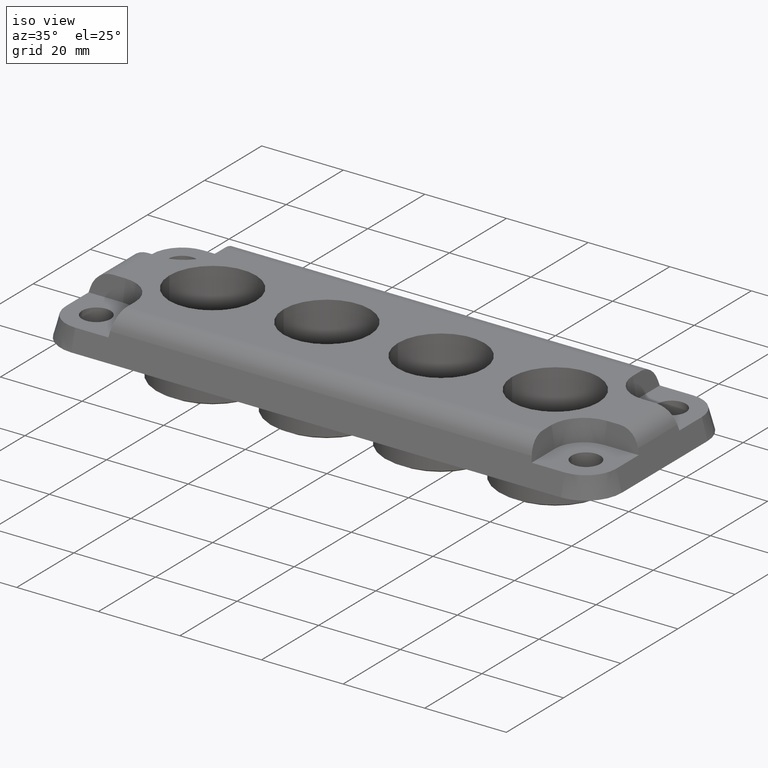
[diagram: clean part render]
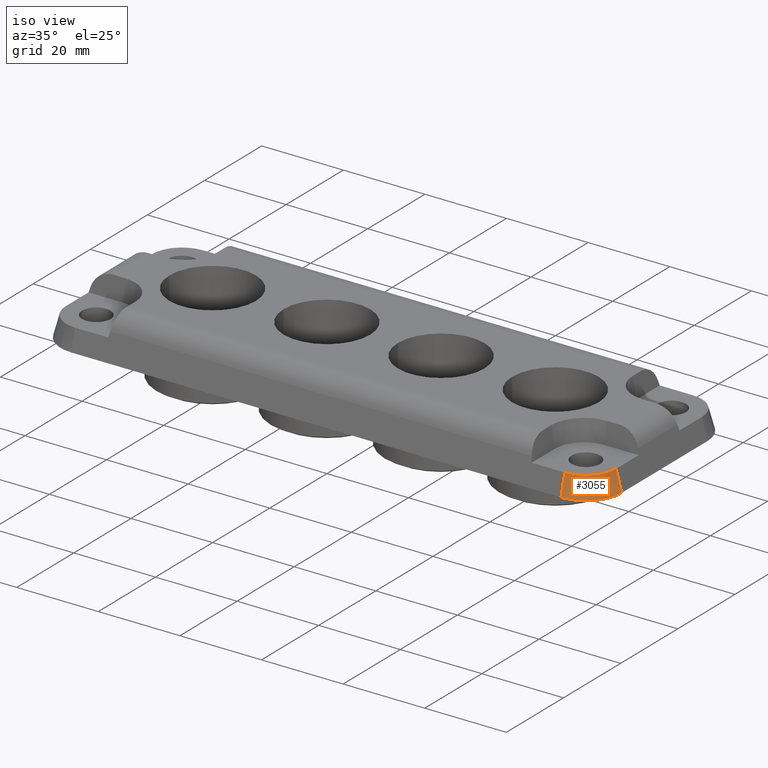
[diagram: same view with one face highlighted and labeled with its STEP entity id]
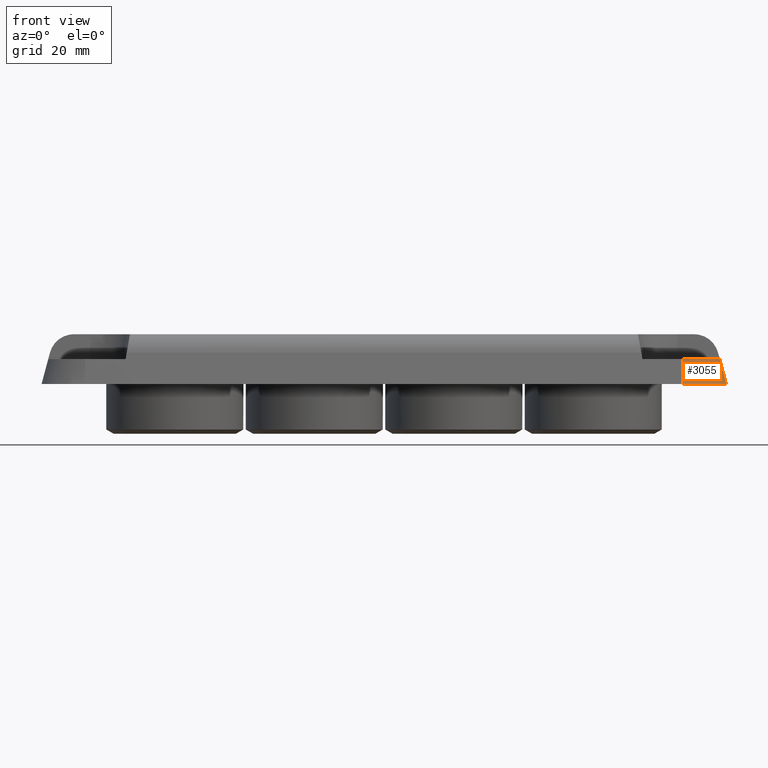
[diagram: same view with one face highlighted and labeled with its STEP entity id]
A machine part, iso view. The second image highlights one B-rep face of the part: STEP entity #3055.
A second angle (front view) of the same face is appended — the face is thin or edge-on in the first view.
In plain terms, the highlighted conical surface has half-angle 15 deg.
Its self-contained STEP definition (entity closure, byte-faithful):
#73 = CARTESIAN_POINT ( 'NONE',  ( 68.75000000000001400, -14.99999999999997700, -3.237038074713971500E-015 ) ) ;
#206 = CONICAL_SURFACE ( 'NONE', #666, 8.750000000000021300, 0.2617993877991500700 ) ;
#496 = VECTOR ( 'NONE', #3266, 1000.000000000000100 ) ;
#501 = LINE ( 'NONE', #1262, #496 ) ;
#657 = ORIENTED_EDGE ( 'NONE', *, *, #3260, .F. ) ;
#666 = AXIS2_PLACEMENT_3D ( 'NONE', #3075, #3283, #870 ) ;
#870 = DIRECTION ( 'NONE',  ( -1.000000000000000000, 0.0000000000000000000, 0.0000000000000000000 ) ) ;
#890 = CIRCLE ( 'NONE', #1618, 8.750000000000021300 ) ;
#897 = CARTESIAN_POINT ( 'NONE',  ( 68.75000000000002800, -14.99999999999997700, 0.0000000000000000000 ) ) ;
#994 = DIRECTION ( 'NONE',  ( -1.000000000000000000, 0.0000000000000000000, 0.0000000000000000000 ) ) ;
#1027 = DIRECTION ( 'NONE',  ( 0.0000000000000000000, 0.0000000000000000000, 1.000000000000000000 ) ) ;
#1262 = CARTESIAN_POINT ( 'NONE',  ( 60.00000000000001400, -23.74999999999999600, -2.602085213965216200E-015 ) ) ;
#1367 = LINE ( 'NONE', #73, #3628 ) ;
#1618 = AXIS2_PLACEMENT_3D ( 'NONE', #3849, #1027, #994 ) ;
#1675 = VERTEX_POINT ( 'NONE', #3303 ) ;
#1871 = DIRECTION ( 'NONE',  ( -0.0000000000000000000, -0.0000000000000000000, -1.000000000000000000 ) ) ;
#1894 = FACE_OUTER_BOUND ( 'NONE', #2013, .T. ) ;
#2013 = EDGE_LOOP ( 'NONE', ( #657, #3384, #3613, #3101 ) ) ;
#2148 = DIRECTION ( 'NONE',  ( -1.000000000000000000, 0.0000000000000000000, 0.0000000000000000000 ) ) ;
#2239 = DIRECTION ( 'NONE',  ( 0.2588190451025212900, -0.0000000000000000000, -0.9659258262890680900 ) ) ;
#2293 = AXIS2_PLACEMENT_3D ( 'NONE', #4056, #1871, #2148 ) ;
#2304 = VERTEX_POINT ( 'NONE', #2672 ) ;
#2487 = VERTEX_POINT ( 'NONE', #3492 ) ;
#2591 = EDGE_CURVE ( 'NONE', #1675, #3991, #890, .T. ) ;
#2626 = CIRCLE ( 'NONE', #2293, 7.410254037844399700 ) ;
#2672 = CARTESIAN_POINT ( 'NONE',  ( 60.00000000000001400, -22.41025403784437800, 5.000000000000000000 ) ) ;
#3055 = ADVANCED_FACE ( 'NONE', ( #1894 ), #206, .T. ) ;
#3075 = CARTESIAN_POINT ( 'NONE',  ( 60.00000000000001400, -14.99999999999997900, 0.0000000000000000000 ) ) ;
#3101 = ORIENTED_EDGE ( 'NONE', *, *, #2591, .T. ) ;
#3116 = EDGE_CURVE ( 'NONE', #2487, #2304, #2626, .T. ) ;
#3260 = EDGE_CURVE ( 'NONE', #2487, #3991, #1367, .T. ) ;
#3266 = DIRECTION ( 'NONE',  ( -0.0000000000000000000, -0.2588190451025213500, -0.9659258262890680900 ) ) ;
#3283 = DIRECTION ( 'NONE',  ( -0.0000000000000000000, -0.0000000000000000000, -1.000000000000000000 ) ) ;
#3303 = CARTESIAN_POINT ( 'NONE',  ( 60.00000000000001400, -23.75000000000000700, 0.0000000000000000000 ) ) ;
#3384 = ORIENTED_EDGE ( 'NONE', *, *, #3116, .T. ) ;
#3492 = CARTESIAN_POINT ( 'NONE',  ( 67.41025403784439600, -14.99999999999997700, 5.000000000000000000 ) ) ;
#3588 = EDGE_CURVE ( 'NONE', #2304, #1675, #501, .T. ) ;
#3613 = ORIENTED_EDGE ( 'NONE', *, *, #3588, .T. ) ;
#3628 = VECTOR ( 'NONE', #2239, 1000.000000000000100 ) ;
#3849 = CARTESIAN_POINT ( 'NONE',  ( 60.00000000000001400, -14.99999999999997900, 0.0000000000000000000 ) ) ;
#3991 = VERTEX_POINT ( 'NONE', #897 ) ;
#4056 = CARTESIAN_POINT ( 'NONE',  ( 60.00000000000001400, -14.99999999999997900, 5.000000000000000000 ) ) ;